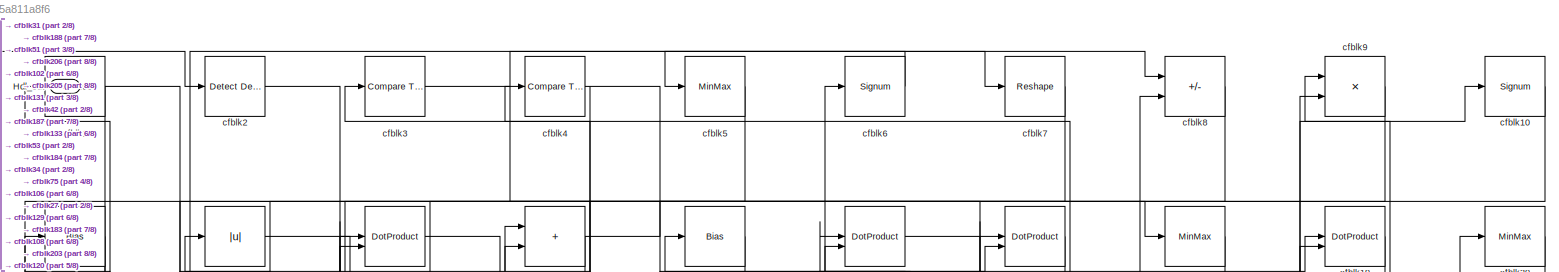
[diagram: root canvas - part 1/8, full width, top band]
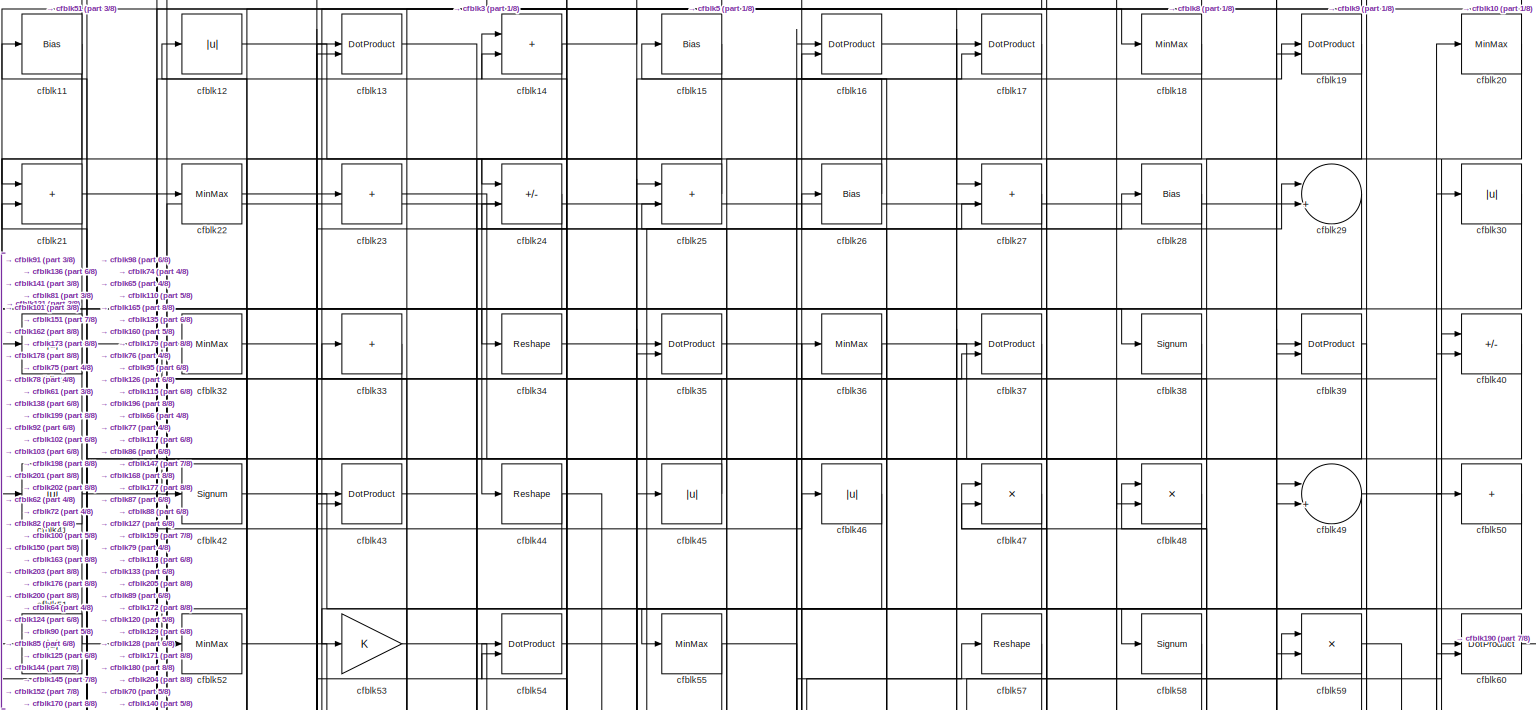
[diagram: root canvas - part 2/8, full width, top band]
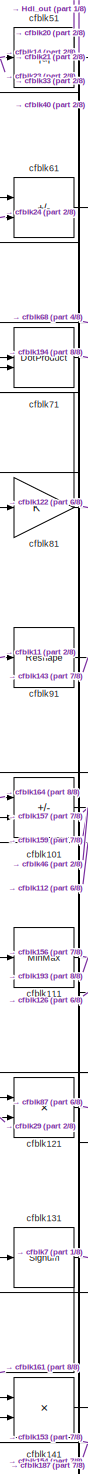
[diagram: root canvas - part 3/8, middle left region]
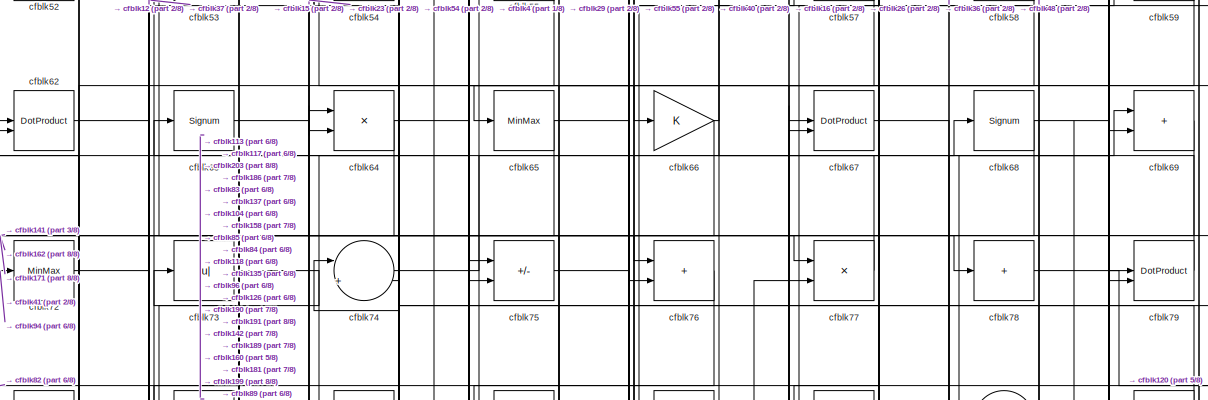
[diagram: root canvas - part 4/8, full width, middle band]
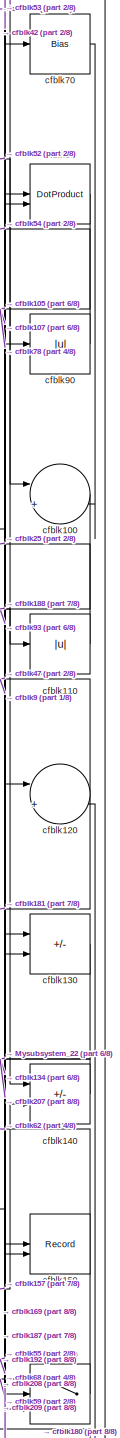
[diagram: root canvas - part 5/8, middle right region]
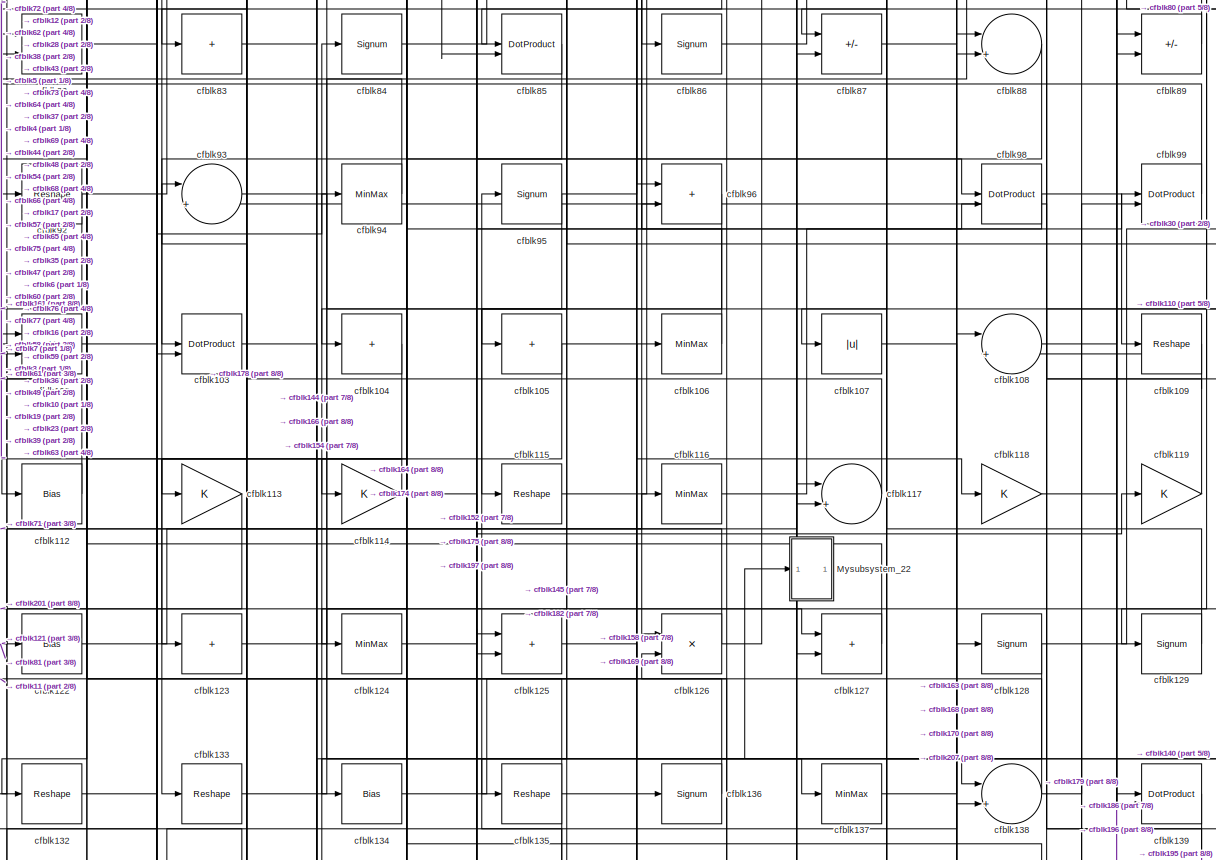
[diagram: root canvas - part 6/8, full width, middle band]
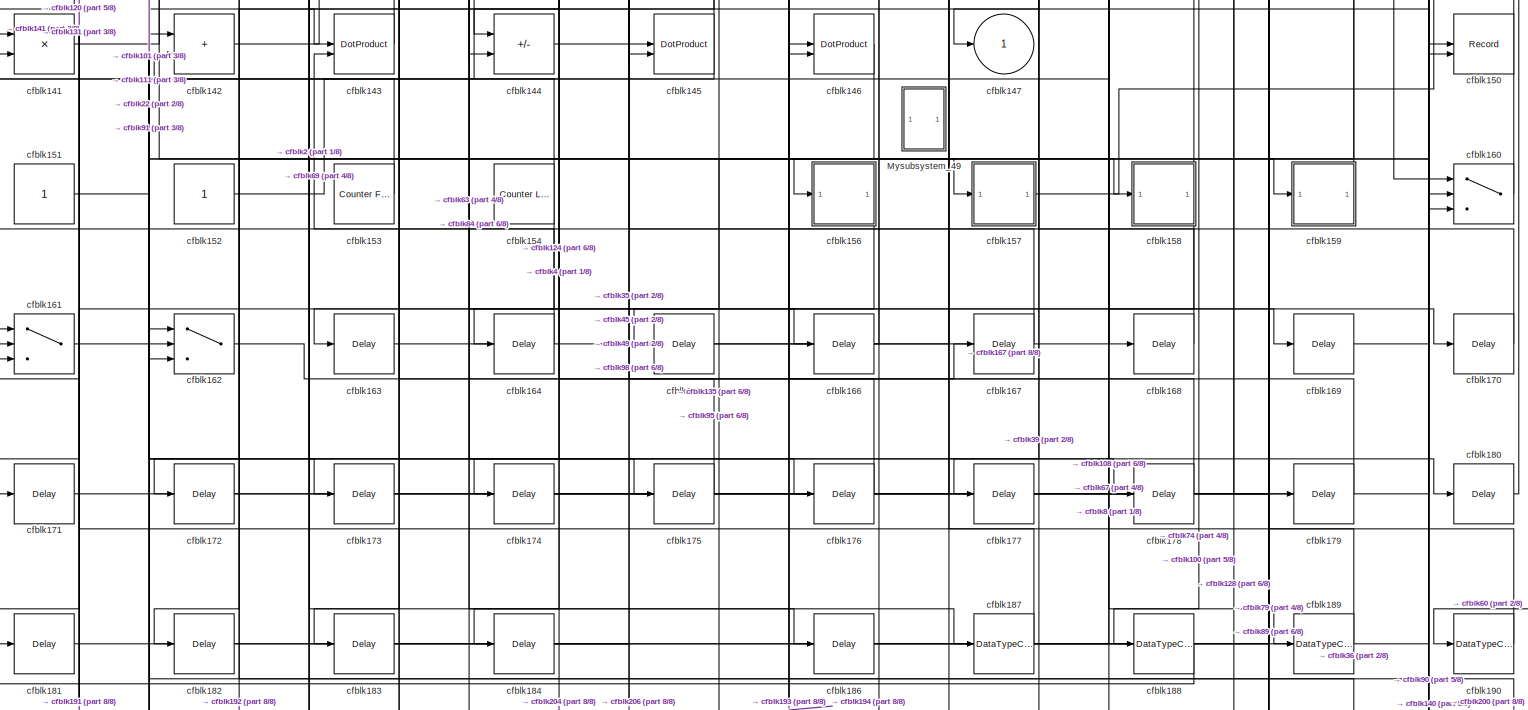
[diagram: root canvas - part 7/8, full width, bottom band]
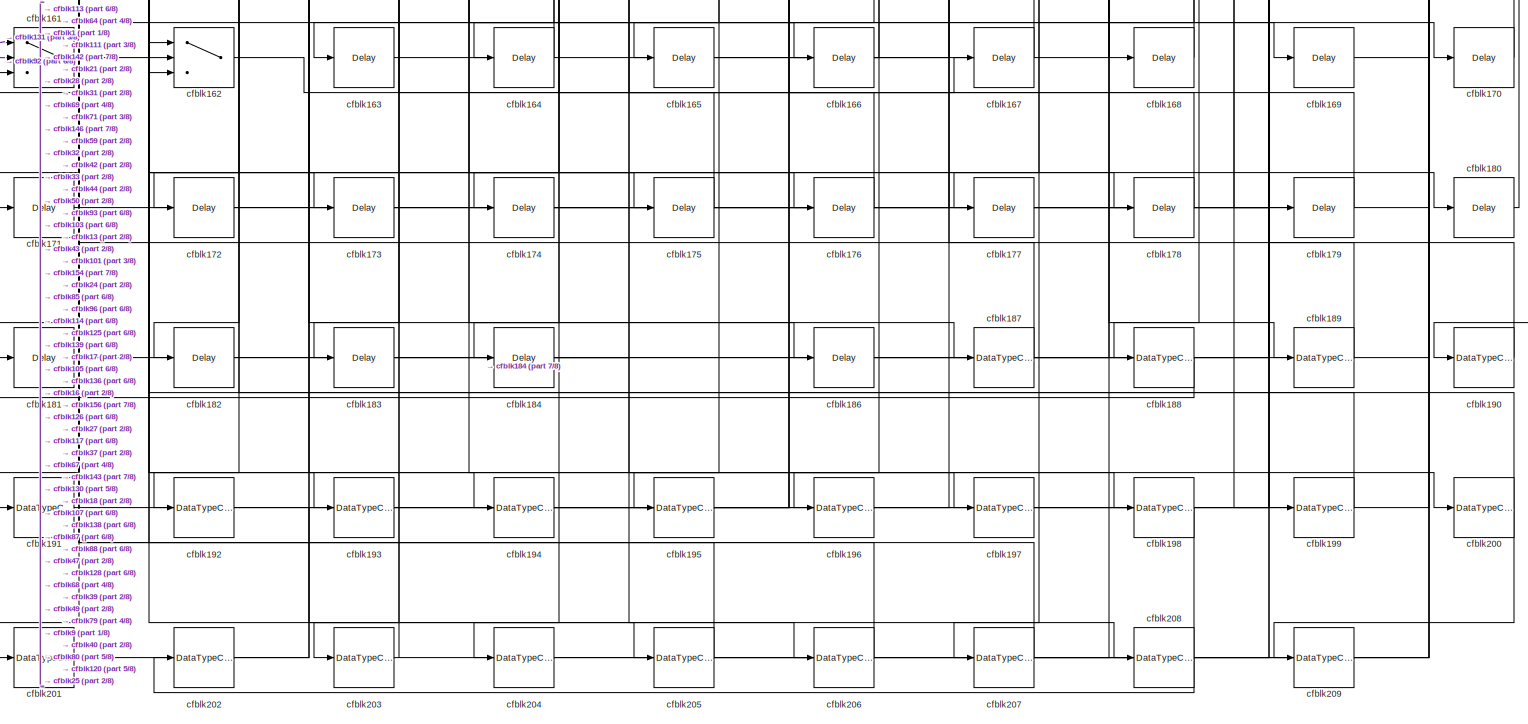
[diagram: root canvas - part 8/8, full width, bottom band]
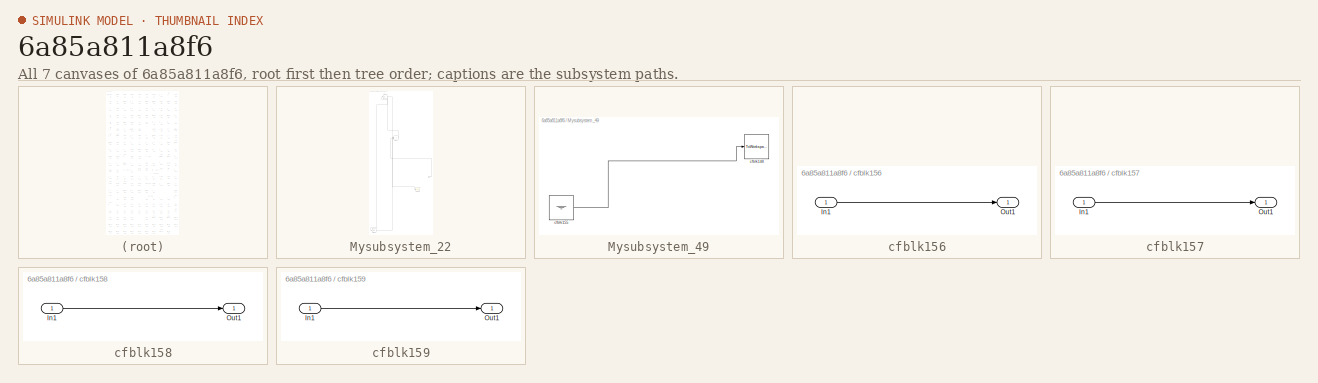
[diagram: thumbnail index - all 7 canvases of the model, root first then tree order]
MODEL slx_6a85a811a8f6
KIND model
CONFIG AbsTol = auto
CONFIG EnableMultiTasking = off
CONFIG FixedStep = auto
CONFIG MaxStep = auto
CONFIG MinStep = auto
CONFIG RelTol = 1e-3
CONFIG SampleTimeConstraint = Unconstrained
CONFIG SolverName = VariableStepAuto
CONFIG StartTime = 0.0
CONFIG StopTime = 10.0
BLOCK [Outport] Hdl_out
  OutDataTypeStr = uint8
  Port = 2
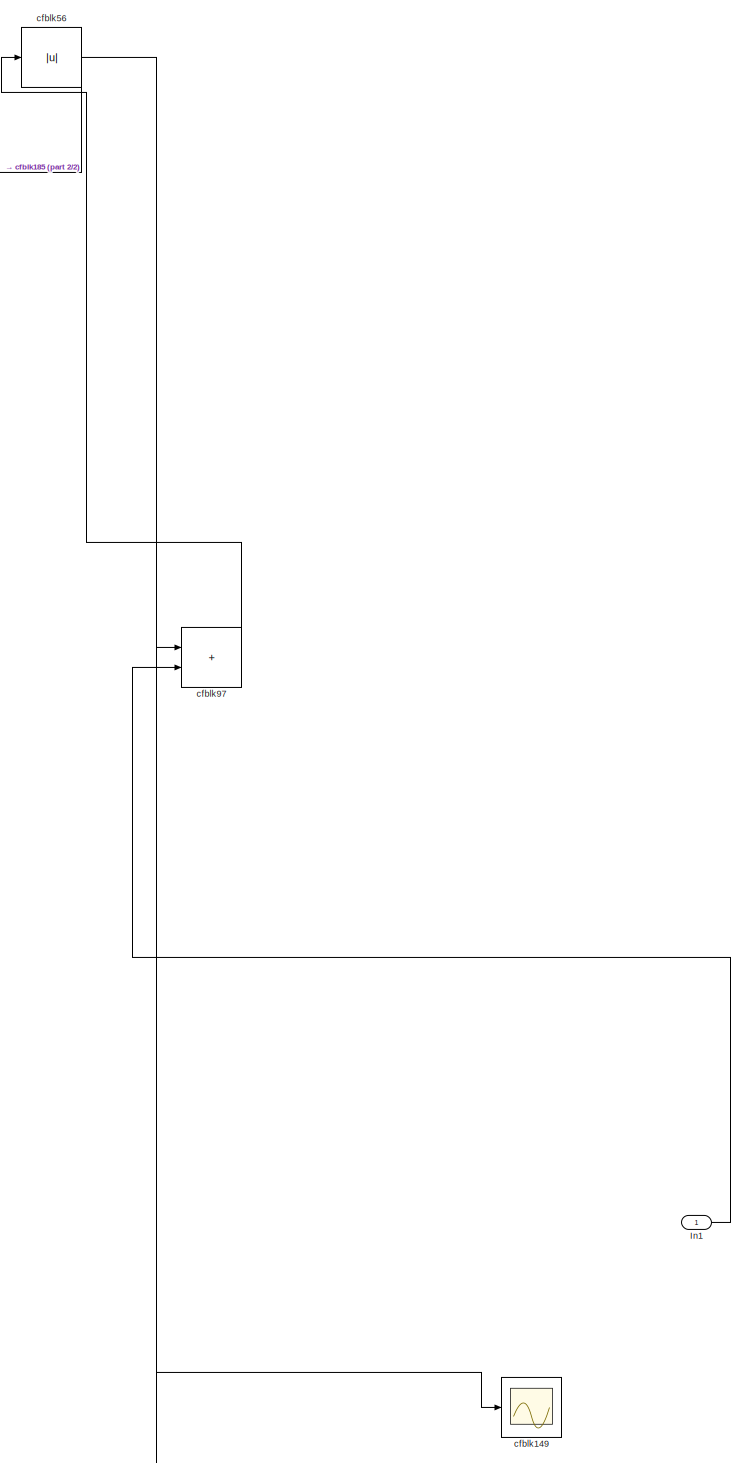
[diagram: Mysubsystem_22 - part 1/2, full width, middle band]
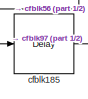
[diagram: Mysubsystem_22 - part 2/2, bottom left region]
BLOCK [SubSystem] Mysubsystem_22
  RTWFcnName = Mysubsystem_22
  RTWFcnNameOpts = User specified
  RTWFileNameOpts = Use function name
  RTWSystemCode = Reusable function
  TreatAsAtomicUnit = on
BLOCK [Inport] Mysubsystem_22/In1
BLOCK [Scope] Mysubsystem_22/cfblk149
  Floating = off
  NumInputPorts = 1
  ScopeSpecificationString = Simulink.scopes.TimeScopeBlockCfg('CurrentConfiguration', extmgr.ConfigurationSet(extmgr.Configuration('Core','General UI',true),extmgr.Configuration('Core','Source UI',true),extmgr.Configuration('Sources','WiredSimulink',true,'DataLoggingVariableName','ScopeData2','DataLoggingSaveFormat','Array','DataLoggingLimitDataPoints',true,'DataLoggingDecimation','1'),extmgr.Configuration('Visuals','Time Do...<+868ch>
BLOCK [Delay] Mysubsystem_22/cfblk185
  InputPortMap = u0
  SampleTime = 1
BLOCK [Abs] Mysubsystem_22/cfblk56
  SaturateOnIntegerOverflow = off
BLOCK [Sum] Mysubsystem_22/cfblk97
  IconShape = rectangular
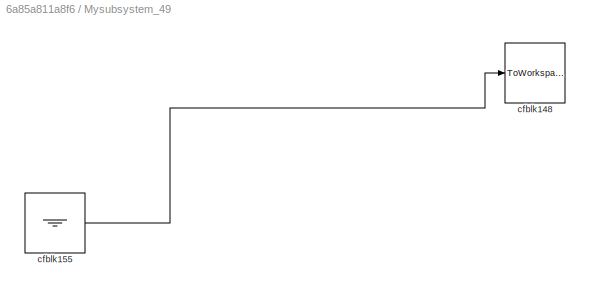
BLOCK [SubSystem] Mysubsystem_49
  RTWFcnName = Mysubsystem_49
  RTWFcnNameOpts = User specified
  RTWFileNameOpts = Use function name
  RTWSystemCode = Reusable function
  TreatAsAtomicUnit = on
BLOCK [ToWorkspace] Mysubsystem_49/cfblk148
  MaxDataPoints = inf
  SampleTime = -1
  SaveFormat = Timeseries
  VariableName = simout
BLOCK [Ground] Mysubsystem_49/cfblk155
BLOCK [Reference] cfblk1  REF=hdlsllib/Logic and Bit
Operations/Bit Slice
  SourceBlock = hdlsllib/Logic and Bit\nOperations/Bit Slice
  SourceType = Bit Slice
BLOCK [Signum] cfblk10
BLOCK [Sum] cfblk100
  Inputs = |++
  OutDataTypeStr = uint8
BLOCK [Sum] cfblk101
  IconShape = rectangular
  Inputs = +-
  OutDataTypeStr = uint8
BLOCK [Product] cfblk102
  Inputs = */
  OutDataTypeStr = uint8
  RndMeth = Zero
  SaturateOnIntegerOverflow = on
BLOCK [DotProduct] cfblk103
  OutDataTypeStr = uint8
BLOCK [Sum] cfblk104
  IconShape = rectangular
  Inputs = +
  OutDataTypeStr = uint8
BLOCK [Sum] cfblk105
  IconShape = rectangular
  Inputs = +
  OutDataTypeStr = uint8
BLOCK [MinMax] cfblk106
  OutDataTypeStr = uint8
BLOCK [Abs] cfblk107
  OutDataTypeStr = uint8
  SaturateOnIntegerOverflow = off
BLOCK [Sum] cfblk108
  Inputs = |++
  OutDataTypeStr = uint8
BLOCK [Reshape] cfblk109
BLOCK [Bias] cfblk11
  Bias = 0.0
  SaturateOnIntegerOverflow = off
BLOCK [Abs] cfblk110
  OutDataTypeStr = uint8
  SaturateOnIntegerOverflow = off
BLOCK [MinMax] cfblk111
  OutDataTypeStr = uint8
BLOCK [Bias] cfblk112
  Bias = 0.0
  SaturateOnIntegerOverflow = off
BLOCK [Gain] cfblk113
  OutDataTypeStr = uint8
BLOCK [Gain] cfblk114
  OutDataTypeStr = uint8
BLOCK [Reshape] cfblk115
BLOCK [MinMax] cfblk116
  OutDataTypeStr = uint8
BLOCK [Sum] cfblk117
  Inputs = |++
  OutDataTypeStr = uint8
BLOCK [Gain] cfblk118
  OutDataTypeStr = uint8
BLOCK [Gain] cfblk119
  OutDataTypeStr = uint8
BLOCK [Abs] cfblk12
  OutDataTypeStr = uint8
  SaturateOnIntegerOverflow = off
BLOCK [Sum] cfblk120
  Inputs = |++
  OutDataTypeStr = uint8
BLOCK [Product] cfblk121
  Inputs = */
  OutDataTypeStr = uint8
  RndMeth = Zero
  SaturateOnIntegerOverflow = on
BLOCK [Bias] cfblk122
  Bias = 0.0
  SaturateOnIntegerOverflow = off
BLOCK [Sum] cfblk123
  IconShape = rectangular
  Inputs = +
  OutDataTypeStr = uint8
BLOCK [MinMax] cfblk124
  OutDataTypeStr = uint8
BLOCK [Sum] cfblk125
  IconShape = rectangular
  OutDataTypeStr = uint8
BLOCK [Product] cfblk126
  Inputs = */
  OutDataTypeStr = uint8
  RndMeth = Zero
  SaturateOnIntegerOverflow = on
BLOCK [Sum] cfblk127
  IconShape = rectangular
  OutDataTypeStr = uint8
BLOCK [Signum] cfblk128
BLOCK [Signum] cfblk129
BLOCK [DotProduct] cfblk13
  OutDataTypeStr = uint8
BLOCK [Sum] cfblk130
  IconShape = rectangular
  Inputs = +-
  OutDataTypeStr = uint8
BLOCK [Signum] cfblk131
BLOCK [Reshape] cfblk132
BLOCK [Reshape] cfblk133
BLOCK [Bias] cfblk134
  Bias = 0.0
  SaturateOnIntegerOverflow = off
BLOCK [Reshape] cfblk135
BLOCK [Signum] cfblk136
BLOCK [MinMax] cfblk137
  OutDataTypeStr = uint8
BLOCK [Sum] cfblk138
  Inputs = |++
  OutDataTypeStr = uint8
BLOCK [DotProduct] cfblk139
  OutDataTypeStr = uint8
BLOCK [Sum] cfblk14
  IconShape = rectangular
  OutDataTypeStr = uint8
BLOCK [Sum] cfblk140
  IconShape = rectangular
  Inputs = +-
  OutDataTypeStr = uint8
BLOCK [Product] cfblk141
  Inputs = */
  OutDataTypeStr = uint8
  RndMeth = Zero
  SaturateOnIntegerOverflow = on
BLOCK [Sum] cfblk142
  IconShape = rectangular
  OutDataTypeStr = uint8
BLOCK [DotProduct] cfblk143
  OutDataTypeStr = uint8
BLOCK [Sum] cfblk144
  IconShape = rectangular
  Inputs = +-
  OutDataTypeStr = uint8
BLOCK [DotProduct] cfblk145
  OutDataTypeStr = uint8
BLOCK [DotProduct] cfblk146
  OutDataTypeStr = uint8
BLOCK [Outport] cfblk147
  OutDataTypeStr = uint8
  VectorParamsAs1DForOutWhenUnconnected = off
BLOCK [Bias] cfblk15
  Bias = 0.0
  SaturateOnIntegerOverflow = off
BLOCK [Record] cfblk150
  CompatibilityTag = XY
  FileSettingsInternal = {"entries":[{"content":{"excelSettings":{"content":{},"type":"Streamout.ExcelSettings"}},"type":"Streamout.FileSettingStorage","uuid":""}],"packageUris":["http:\/\/schema.mathworks.com\/mf0\/streamout_blocks\/R2020a"],"version":"1.0"}
  Layout = [1 1]
  SignalsInternal = {"entries":[{"content":{"signals":[{"content":{"blockPath":[],"dimensions":[1],"domain":"","lineColor":"#a2142f","plots":[1],"port":1,"signalID":10478,"signalName":"cfblk53"},"type":"RecordBlkView.Signal","uuid":""},{"content":{"blockPath":[],"dimensions":[1],"domain":"","lineColor":"#139fff","plots":[1],"port":2,"signalID":10481,"signalName":"cfblk52"},"type":"RecordBlkView.Signal","uuid":""}]},"...<+142ch>
  VisualizationBindings = {"xyplotplugin":{"info":[{"series":[{"bindingParametersList":[{"parameter":"X-Axis","signalID":10478,"signalName":"cfblk53"},{"parameter":"Y-Axis","signalID":10481,"signalName":"cfblk52"}],"seriesID":7258}],"subplotID":1}]}}
  st = -1
BLOCK [Constant] cfblk151
  OutDataTypeStr = uint8
  SampleTime = -1
BLOCK [Constant] cfblk152
  OutDataTypeStr = uint8
  SampleTime = -1
BLOCK [Reference] cfblk153  REF=hdlsllib/Sources/Counter
Free-Running
  SourceBlock = hdlsllib/Sources/Counter\nFree-Running
  SourceType = Counter Free-Running
BLOCK [Reference] cfblk154  REF=hdlsllib/Sources/Counter
Limited
  SourceBlock = hdlsllib/Sources/Counter\nLimited
  SourceType = Counter Limited
BLOCK [SubSystem] cfblk156
  LibrarySourceBlock = hdlsllib/Ports &\nSubsystems/Subsystem
BLOCK [Inport] cfblk156/In1
BLOCK [Outport] cfblk156/Out1
BLOCK [SubSystem] cfblk157
  LibrarySourceBlock = hdlsllib/Ports &\nSubsystems/Subsystem
BLOCK [Inport] cfblk157/In1
BLOCK [Outport] cfblk157/Out1
BLOCK [SubSystem] cfblk158
  LibrarySourceBlock = hdlsllib/Ports &\nSubsystems/Subsystem
BLOCK [Inport] cfblk158/In1
BLOCK [Outport] cfblk158/Out1
BLOCK [SubSystem] cfblk159
  LibrarySourceBlock = hdlsllib/Ports &\nSubsystems/Subsystem
BLOCK [Inport] cfblk159/In1
BLOCK [Outport] cfblk159/Out1
BLOCK [DotProduct] cfblk16
  OutDataTypeStr = uint8
BLOCK [Switch] cfblk160
  InputSameDT = off
  OutDataTypeStr = uint8
  SaturateOnIntegerOverflow = off
BLOCK [Switch] cfblk161
  InputSameDT = off
  OutDataTypeStr = uint8
  SaturateOnIntegerOverflow = off
BLOCK [Switch] cfblk162
  InputSameDT = off
  OutDataTypeStr = uint8
  SaturateOnIntegerOverflow = off
BLOCK [Delay] cfblk163
  InputPortMap = u0
  SampleTime = 1
BLOCK [Delay] cfblk164
  InputPortMap = u0
  SampleTime = 1
BLOCK [Delay] cfblk165
  InputPortMap = u0
  SampleTime = 1
BLOCK [Delay] cfblk166
  InputPortMap = u0
  SampleTime = 1
BLOCK [Delay] cfblk167
  InputPortMap = u0
  SampleTime = 1
BLOCK [Delay] cfblk168
  InputPortMap = u0
  SampleTime = 1
BLOCK [Delay] cfblk169
  InputPortMap = u0
  SampleTime = 1
BLOCK [DotProduct] cfblk17
  OutDataTypeStr = uint8
BLOCK [Delay] cfblk170
  InputPortMap = u0
  SampleTime = 1
BLOCK [Delay] cfblk171
  InputPortMap = u0
  SampleTime = 1
BLOCK [Delay] cfblk172
  InputPortMap = u0
  SampleTime = 1
BLOCK [Delay] cfblk173
  InputPortMap = u0
  SampleTime = 1
BLOCK [Delay] cfblk174
  InputPortMap = u0
  SampleTime = 1
BLOCK [Delay] cfblk175
  InputPortMap = u0
  SampleTime = 1
BLOCK [Delay] cfblk176
  InputPortMap = u0
  SampleTime = 1
BLOCK [Delay] cfblk177
  InputPortMap = u0
  SampleTime = 1
BLOCK [Delay] cfblk178
  InputPortMap = u0
  SampleTime = 1
BLOCK [Delay] cfblk179
  InputPortMap = u0
  SampleTime = 1
BLOCK [MinMax] cfblk18
  OutDataTypeStr = uint8
BLOCK [Delay] cfblk180
  InputPortMap = u0
  SampleTime = 1
BLOCK [Delay] cfblk181
  InputPortMap = u0
  SampleTime = 1
BLOCK [Delay] cfblk182
  InputPortMap = u0
  SampleTime = 1
BLOCK [Delay] cfblk183
  InputPortMap = u0
  SampleTime = 1
BLOCK [Delay] cfblk184
  InputPortMap = u0
  SampleTime = 1
BLOCK [Delay] cfblk186
  InputPortMap = u0
  SampleTime = 1
BLOCK [DataTypeConversion] cfblk187
  OutDataTypeStr = uint8
  RndMeth = Floor
  SaturateOnIntegerOverflow = off
BLOCK [DataTypeConversion] cfblk188
  OutDataTypeStr = uint8
  RndMeth = Floor
  SaturateOnIntegerOverflow = off
BLOCK [DataTypeConversion] cfblk189
  OutDataTypeStr = uint8
  RndMeth = Floor
  SaturateOnIntegerOverflow = off
BLOCK [DotProduct] cfblk19
  OutDataTypeStr = uint8
BLOCK [DataTypeConversion] cfblk190
  OutDataTypeStr = uint8
  RndMeth = Floor
  SaturateOnIntegerOverflow = off
BLOCK [DataTypeConversion] cfblk191
  OutDataTypeStr = uint8
  RndMeth = Floor
  SaturateOnIntegerOverflow = off
BLOCK [DataTypeConversion] cfblk192
  OutDataTypeStr = uint8
  RndMeth = Floor
  SaturateOnIntegerOverflow = off
BLOCK [DataTypeConversion] cfblk193
  OutDataTypeStr = uint8
  RndMeth = Floor
  SaturateOnIntegerOverflow = off
BLOCK [DataTypeConversion] cfblk194
  OutDataTypeStr = uint8
  RndMeth = Floor
  SaturateOnIntegerOverflow = off
BLOCK [DataTypeConversion] cfblk195
  OutDataTypeStr = uint8
  RndMeth = Floor
  SaturateOnIntegerOverflow = off
BLOCK [DataTypeConversion] cfblk196
  OutDataTypeStr = uint8
  RndMeth = Floor
  SaturateOnIntegerOverflow = off
BLOCK [DataTypeConversion] cfblk197
  OutDataTypeStr = uint8
  RndMeth = Floor
  SaturateOnIntegerOverflow = off
BLOCK [DataTypeConversion] cfblk198
  OutDataTypeStr = uint8
  RndMeth = Floor
  SaturateOnIntegerOverflow = off
BLOCK [DataTypeConversion] cfblk199
  OutDataTypeStr = uint8
  RndMeth = Floor
  SaturateOnIntegerOverflow = off
BLOCK [Reference] cfblk2  REF=simulink/Logic and Bit
Operations/Detect
Decrease
  LibrarySourceBlock = hdlsllib/Logic and Bit\nOperations/Detect\nDecrease
  SourceBlock = simulink/Logic and Bit\nOperations/Detect\nDecrease
  SourceType = Detect Decrease
BLOCK [MinMax] cfblk20
  OutDataTypeStr = uint8
BLOCK [DataTypeConversion] cfblk200
  OutDataTypeStr = uint8
  RndMeth = Floor
  SaturateOnIntegerOverflow = off
BLOCK [DataTypeConversion] cfblk201
  OutDataTypeStr = uint8
  RndMeth = Floor
  SaturateOnIntegerOverflow = off
BLOCK [DataTypeConversion] cfblk202
  OutDataTypeStr = uint8
  RndMeth = Floor
  SaturateOnIntegerOverflow = off
BLOCK [DataTypeConversion] cfblk203
  OutDataTypeStr = uint8
  RndMeth = Floor
  SaturateOnIntegerOverflow = off
BLOCK [DataTypeConversion] cfblk204
  OutDataTypeStr = uint8
  RndMeth = Floor
  SaturateOnIntegerOverflow = off
BLOCK [DataTypeConversion] cfblk205
  OutDataTypeStr = uint8
  RndMeth = Floor
  SaturateOnIntegerOverflow = off
BLOCK [DataTypeConversion] cfblk206
  OutDataTypeStr = uint8
  RndMeth = Floor
  SaturateOnIntegerOverflow = off
BLOCK [DataTypeConversion] cfblk207
  OutDataTypeStr = uint8
  RndMeth = Floor
  SaturateOnIntegerOverflow = off
BLOCK [DataTypeConversion] cfblk208
  OutDataTypeStr = uint8
  RndMeth = Floor
  SaturateOnIntegerOverflow = off
BLOCK [DataTypeConversion] cfblk209
  OutDataTypeStr = uint8
  RndMeth = Floor
  SaturateOnIntegerOverflow = off
BLOCK [Sum] cfblk21
  IconShape = rectangular
  OutDataTypeStr = uint8
BLOCK [MinMax] cfblk22
  OutDataTypeStr = uint8
BLOCK [Sum] cfblk23
  IconShape = rectangular
  Inputs = +
  OutDataTypeStr = uint8
BLOCK [Sum] cfblk24
  IconShape = rectangular
  Inputs = +-
  OutDataTypeStr = uint8
BLOCK [Sum] cfblk25
  IconShape = rectangular
  OutDataTypeStr = uint8
BLOCK [Bias] cfblk26
  Bias = 0.0
  SaturateOnIntegerOverflow = off
BLOCK [Sum] cfblk27
  IconShape = rectangular
  OutDataTypeStr = uint8
BLOCK [Bias] cfblk28
  Bias = 0.0
  SaturateOnIntegerOverflow = off
BLOCK [Sum] cfblk29
  Inputs = |++
  OutDataTypeStr = uint8
BLOCK [Reference] cfblk3  REF=hdlsllib/Logic and Bit
Operations/Compare
To Zero
  SourceBlock = hdlsllib/Logic and Bit\nOperations/Compare\nTo Zero
  SourceType = Compare To Zero
BLOCK [Abs] cfblk30
  OutDataTypeStr = uint8
  SaturateOnIntegerOverflow = off
BLOCK [Abs] cfblk31
  OutDataTypeStr = uint8
  SaturateOnIntegerOverflow = off
BLOCK [MinMax] cfblk32
  OutDataTypeStr = uint8
BLOCK [Sum] cfblk33
  IconShape = rectangular
  Inputs = +
  OutDataTypeStr = uint8
BLOCK [Reshape] cfblk34
BLOCK [DotProduct] cfblk35
  OutDataTypeStr = uint8
BLOCK [MinMax] cfblk36
  OutDataTypeStr = uint8
BLOCK [DotProduct] cfblk37
  OutDataTypeStr = uint8
BLOCK [Signum] cfblk38
BLOCK [DotProduct] cfblk39
  OutDataTypeStr = uint8
BLOCK [Reference] cfblk4  REF=hdlsllib/Logic and Bit
Operations/Compare
To Constant
  SourceBlock = hdlsllib/Logic and Bit\nOperations/Compare\nTo Constant
  SourceType = Compare To Constant
BLOCK [Sum] cfblk40
  IconShape = rectangular
  Inputs = +-
  OutDataTypeStr = uint8
BLOCK [Abs] cfblk41
  OutDataTypeStr = uint8
  SaturateOnIntegerOverflow = off
BLOCK [Signum] cfblk42
BLOCK [DotProduct] cfblk43
  OutDataTypeStr = uint8
BLOCK [Reshape] cfblk44
BLOCK [Abs] cfblk45
  OutDataTypeStr = uint8
  SaturateOnIntegerOverflow = off
BLOCK [Abs] cfblk46
  OutDataTypeStr = uint8
  SaturateOnIntegerOverflow = off
BLOCK [Product] cfblk47
  Inputs = */
  OutDataTypeStr = uint8
  RndMeth = Zero
  SaturateOnIntegerOverflow = on
BLOCK [Product] cfblk48
  Inputs = */
  OutDataTypeStr = uint8
  RndMeth = Zero
  SaturateOnIntegerOverflow = on
BLOCK [Sum] cfblk49
  Inputs = |++
  OutDataTypeStr = uint8
BLOCK [MinMax] cfblk5
  OutDataTypeStr = uint8
BLOCK [Sum] cfblk50
  IconShape = rectangular
  Inputs = +
  OutDataTypeStr = uint8
BLOCK [Abs] cfblk51
  OutDataTypeStr = uint8
  SaturateOnIntegerOverflow = off
BLOCK [MinMax] cfblk52
  OutDataTypeStr = uint8
BLOCK [Gain] cfblk53
  OutDataTypeStr = uint8
BLOCK [DotProduct] cfblk54
  OutDataTypeStr = uint8
BLOCK [MinMax] cfblk55
  OutDataTypeStr = uint8
BLOCK [Reshape] cfblk57
BLOCK [Signum] cfblk58
BLOCK [Product] cfblk59
  Inputs = */
  OutDataTypeStr = uint8
  RndMeth = Zero
  SaturateOnIntegerOverflow = on
BLOCK [Signum] cfblk6
BLOCK [DotProduct] cfblk60
  OutDataTypeStr = uint8
BLOCK [Sum] cfblk61
  IconShape = rectangular
  Inputs = +-
  OutDataTypeStr = uint8
BLOCK [DotProduct] cfblk62
  OutDataTypeStr = uint8
BLOCK [Signum] cfblk63
BLOCK [Product] cfblk64
  Inputs = */
  OutDataTypeStr = uint8
  RndMeth = Zero
  SaturateOnIntegerOverflow = on
BLOCK [MinMax] cfblk65
  OutDataTypeStr = uint8
BLOCK [Gain] cfblk66
  OutDataTypeStr = uint8
BLOCK [DotProduct] cfblk67
  OutDataTypeStr = uint8
BLOCK [Signum] cfblk68
BLOCK [Sum] cfblk69
  IconShape = rectangular
  OutDataTypeStr = uint8
BLOCK [Reshape] cfblk7
BLOCK [Bias] cfblk70
  Bias = 0.0
  SaturateOnIntegerOverflow = off
BLOCK [DotProduct] cfblk71
  OutDataTypeStr = uint8
BLOCK [MinMax] cfblk72
  OutDataTypeStr = uint8
BLOCK [Abs] cfblk73
  OutDataTypeStr = uint8
  SaturateOnIntegerOverflow = off
BLOCK [Sum] cfblk74
  Inputs = |++
  OutDataTypeStr = uint8
BLOCK [Sum] cfblk75
  IconShape = rectangular
  Inputs = +-
  OutDataTypeStr = uint8
BLOCK [Sum] cfblk76
  IconShape = rectangular
  OutDataTypeStr = uint8
BLOCK [Product] cfblk77
  Inputs = */
  OutDataTypeStr = uint8
  RndMeth = Zero
  SaturateOnIntegerOverflow = on
BLOCK [Sum] cfblk78
  IconShape = rectangular
  Inputs = +
  OutDataTypeStr = uint8
BLOCK [DotProduct] cfblk79
  OutDataTypeStr = uint8
BLOCK [Sum] cfblk8
  IconShape = rectangular
  Inputs = +-
  OutDataTypeStr = uint8
BLOCK [DotProduct] cfblk80
  OutDataTypeStr = uint8
BLOCK [Gain] cfblk81
  OutDataTypeStr = uint8
BLOCK [Sum] cfblk82
  IconShape = rectangular
  OutDataTypeStr = uint8
BLOCK [Sum] cfblk83
  IconShape = rectangular
  Inputs = +
  OutDataTypeStr = uint8
BLOCK [Signum] cfblk84
BLOCK [DotProduct] cfblk85
  OutDataTypeStr = uint8
BLOCK [Signum] cfblk86
BLOCK [Sum] cfblk87
  IconShape = rectangular
  Inputs = +-
  OutDataTypeStr = uint8
BLOCK [Sum] cfblk88
  Inputs = |++
  OutDataTypeStr = uint8
BLOCK [Sum] cfblk89
  IconShape = rectangular
  Inputs = +-
  OutDataTypeStr = uint8
BLOCK [Product] cfblk9
  Inputs = */
  OutDataTypeStr = uint8
  RndMeth = Zero
  SaturateOnIntegerOverflow = on
BLOCK [Abs] cfblk90
  OutDataTypeStr = uint8
  SaturateOnIntegerOverflow = off
BLOCK [Reshape] cfblk91
BLOCK [Reshape] cfblk92
BLOCK [Sum] cfblk93
  Inputs = |++
  OutDataTypeStr = uint8
BLOCK [MinMax] cfblk94
  OutDataTypeStr = uint8
BLOCK [Signum] cfblk95
BLOCK [Sum] cfblk96
  IconShape = rectangular
  OutDataTypeStr = uint8
BLOCK [DotProduct] cfblk98
  OutDataTypeStr = uint8
BLOCK [DotProduct] cfblk99
  OutDataTypeStr = uint8
LINE Mysubsystem_22/In1:1 -> Mysubsystem_22/cfblk97:2
LINE Mysubsystem_22/cfblk185:1 -> Mysubsystem_22/cfblk97:1
NET Mysubsystem_22/cfblk56:1 -> Mysubsystem_22/cfblk149:1, Mysubsystem_22/cfblk185:1
LINE Mysubsystem_22/cfblk97:1 -> Mysubsystem_22/cfblk56:1
LINE Mysubsystem_49/cfblk155:1 -> Mysubsystem_49/cfblk148:1
LINE cfblk100:1 -> cfblk188:1
NET cfblk101:1 -> cfblk157:1, cfblk159:1, cfblk46:1
LINE cfblk102:1 -> cfblk28:1
LINE cfblk103:1 -> cfblk166:1
LINE cfblk104:1 -> cfblk132:1
NET cfblk105:1 -> cfblk123:1, cfblk169:1
NET cfblk106:1 -> cfblk4:1, cfblk6:1
LINE cfblk107:1 -> cfblk170:1
LINE cfblk108:1 -> cfblk10:1
LINE cfblk109:1 -> cfblk108:2
LINE cfblk10:1 -> cfblk31:1
LINE cfblk110:1 -> cfblk25:2
NET cfblk111:1 -> cfblk156:1, cfblk193:1
LINE cfblk112:1 -> cfblk61:1
LINE cfblk113:1 -> cfblk201:1
NET cfblk114:1 -> cfblk112:1, cfblk197:1
LINE cfblk115:1 -> cfblk60:1
LINE cfblk116:1 -> cfblk99:1
LINE cfblk117:1 -> cfblk73:1
LINE cfblk118:1 -> cfblk19:2
LINE cfblk119:1 -> cfblk93:2
LINE cfblk11:1 -> cfblk91:1
NET cfblk120:1 -> cfblk181:1, cfblk47:1, cfblk9:1
LINE cfblk121:1 -> cfblk87:2
LINE cfblk122:1 -> cfblk116:1
LINE cfblk123:1 -> cfblk127:1
NET cfblk124:1 -> cfblk119:1, cfblk144:1
LINE cfblk125:1 -> cfblk138:1
NET cfblk126:1 -> cfblk71:2, cfblk77:2
LINE cfblk127:1 -> cfblk102:1
NET cfblk128:1 -> cfblk144:2, cfblk179:1, cfblk30:1
LINE cfblk129:1 -> cfblk3:1
NET cfblk12:1 -> cfblk44:1, cfblk76:1
LINE cfblk130:1 -> cfblk207:1
NET cfblk131:1 -> cfblk161:1, cfblk7:1
LINE cfblk132:1 -> cfblk94:1
LINE cfblk133:1 -> cfblk49:1
LINE cfblk134:1 -> cfblk106:1
NET cfblk135:1 -> cfblk158:1, cfblk17:2, cfblk182:1, cfblk62:1
LINE cfblk136:1 -> cfblk11:1
LINE cfblk137:1 -> cfblk128:1
NET cfblk138:1 -> cfblk12:1, cfblk99:2
LINE cfblk139:1 -> cfblk195:1
LINE cfblk13:1 -> cfblk200:1
NET cfblk140:1 -> Mysubsystem_22:1, cfblk134:1
NET cfblk141:1 -> cfblk14:2, cfblk23:1, cfblk51:1
LINE cfblk142:1 -> cfblk69:1
LINE cfblk143:1 -> cfblk101:2
NET cfblk144:1 -> cfblk45:1, cfblk98:2
NET cfblk145:1 -> cfblk142:2, cfblk95:1
LINE cfblk146:1 -> cfblk192:1
NET cfblk14:1 -> cfblk18:1, cfblk21:1, cfblk43:2
LINE cfblk151:1 -> cfblk22:1
NET cfblk152:1 -> cfblk108:1, cfblk35:2
LINE cfblk153:1 -> cfblk111:1
NET cfblk154:1 -> cfblk141:1, cfblk191:1, cfblk84:1
LINE cfblk156/In1:1 -> cfblk156/Out1:1
LINE cfblk156:1 -> cfblk204:1
LINE cfblk157/In1:1 -> cfblk157/Out1:1
LINE cfblk157:1 -> cfblk140:2
LINE cfblk158/In1:1 -> cfblk158/Out1:1
NET cfblk158:1 -> cfblk183:1, cfblk74:1
LINE cfblk159/In1:1 -> cfblk159/Out1:1
LINE cfblk159:1 -> cfblk36:1
LINE cfblk15:1 -> cfblk64:2
LINE cfblk160:1 -> cfblk62:2
LINE cfblk161:1 -> cfblk175:1
LINE cfblk162:1 -> cfblk167:1
LINE cfblk163:1 -> cfblk138:2
LINE cfblk164:1 -> cfblk101:1
LINE cfblk165:1 -> cfblk37:1
LINE cfblk166:1 -> cfblk126:2
LINE cfblk167:1 -> cfblk143:2
LINE cfblk168:1 -> cfblk47:2
LINE cfblk169:1 -> cfblk80:2
LINE cfblk16:1 -> cfblk117:2
LINE cfblk170:1 -> cfblk25:1
LINE cfblk171:1 -> cfblk40:2
LINE cfblk172:1 -> cfblk49:2
LINE cfblk173:1 -> cfblk59:2
LINE cfblk174:1 -> cfblk117:1
LINE cfblk175:1 -> cfblk125:1
LINE cfblk176:1 -> cfblk24:2
LINE cfblk177:1 -> cfblk39:2
LINE cfblk178:1 -> cfblk93:1
LINE cfblk179:1 -> cfblk16:1
LINE cfblk17:1 -> cfblk165:1
LINE cfblk180:1 -> cfblk120:2
LINE cfblk181:1 -> cfblk69:2
LINE cfblk182:1 -> cfblk145:1
LINE cfblk183:1 -> cfblk8:2
LINE cfblk184:1 -> cfblk206:1
LINE cfblk186:1 -> cfblk89:1
NET cfblk187:1 -> cfblk131:1, cfblk90:1
LINE cfblk188:1 -> cfblk2:1
LINE cfblk189:1 -> cfblk79:1
LINE cfblk18:1 -> cfblk177:1
LINE cfblk190:1 -> cfblk67:1
LINE cfblk191:1 -> cfblk67:2
NET cfblk192:1 -> cfblk208:1, cfblk80:1
LINE cfblk193:1 -> cfblk146:1
LINE cfblk194:1 -> cfblk146:2
LINE cfblk195:1 -> cfblk136:1
LINE cfblk196:1 -> cfblk139:1
LINE cfblk197:1 -> cfblk139:2
LINE cfblk198:1 -> cfblk202:1
LINE cfblk199:1 -> cfblk32:1
LINE cfblk19:1 -> cfblk58:1
LINE cfblk1:1 -> cfblk205:1
NET cfblk200:1 -> cfblk142:1, cfblk209:1
LINE cfblk201:1 -> cfblk13:1
LINE cfblk202:1 -> cfblk13:2
NET cfblk203:1 -> cfblk33:1, cfblk79:2, cfblk9:2
LINE cfblk204:1 -> cfblk50:1
NET cfblk205:1 -> cfblk161:3, cfblk39:1
LINE cfblk206:1 -> cfblk1:1
NET cfblk207:1 -> cfblk162:1, cfblk88:2
LINE cfblk208:1 -> cfblk130:1
LINE cfblk209:1 -> cfblk130:2
NET cfblk20:1 -> cfblk140:1, cfblk52:1
LINE cfblk21:1 -> cfblk178:1
NET cfblk22:1 -> cfblk38:1, cfblk48:2
NET cfblk23:1 -> cfblk77:1, cfblk89:2
LINE cfblk24:1 -> cfblk61:2
LINE cfblk25:1 -> cfblk24:1
LINE cfblk26:1 -> cfblk15:1
LINE cfblk27:1 -> cfblk196:1
NET cfblk28:1 -> cfblk162:2, cfblk87:1
NET cfblk29:1 -> cfblk121:2, cfblk41:1
LINE cfblk2:1 -> cfblk187:1
LINE cfblk30:1 -> cfblk92:1
LINE cfblk31:1 -> cfblk173:1
LINE cfblk32:1 -> cfblk198:1
LINE cfblk33:1 -> cfblk121:1
LINE cfblk34:1 -> cfblk19:1
LINE cfblk35:1 -> cfblk86:1
NET cfblk36:1 -> cfblk74:2, cfblk88:1
LINE cfblk37:1 -> cfblk124:1
LINE cfblk38:1 -> cfblk103:2
NET cfblk39:1 -> cfblk129:1, cfblk147:1
NET cfblk3:1 -> cfblk27:1, cfblk8:1
NET cfblk40:1 -> cfblk60:2, cfblk76:2, cfblk81:1
NET cfblk41:1 -> cfblk17:1, cfblk75:2, cfblk78:1
NET cfblk42:1 -> cfblk180:1, cfblk70:1
LINE cfblk43:1 -> cfblk176:1
NET cfblk44:1 -> cfblk163:1, cfblk85:2
LINE cfblk45:1 -> cfblk14:1
LINE cfblk46:1 -> cfblk55:1
LINE cfblk47:1 -> cfblk126:1
LINE cfblk48:1 -> cfblk125:2
NET cfblk49:1 -> cfblk145:2, cfblk40:1
NET cfblk4:1 -> cfblk184:1, cfblk75:1
LINE cfblk50:1 -> cfblk203:1
NET cfblk51:1 -> Hdl_out:1, cfblk20:1
NET cfblk52:1 -> cfblk100:1, cfblk150:2
NET cfblk53:1 -> cfblk150:1, cfblk27:2
LINE cfblk54:1 -> cfblk98:1
NET cfblk55:1 -> cfblk160:2, cfblk65:1
LINE cfblk57:1 -> cfblk135:1
LINE cfblk58:1 -> cfblk127:2
NET cfblk59:1 -> cfblk160:1, cfblk172:1
NET cfblk5:1 -> cfblk133:1, cfblk34:1
LINE cfblk60:1 -> cfblk190:1
LINE cfblk61:1 -> cfblk29:2
LINE cfblk62:1 -> cfblk54:2
LINE cfblk63:1 -> cfblk186:1
NET cfblk64:1 -> cfblk171:1, cfblk66:1
NET cfblk65:1 -> cfblk118:1, cfblk83:1
NET cfblk66:1 -> cfblk16:2, cfblk85:1
LINE cfblk67:1 -> cfblk189:1
NET cfblk68:1 -> cfblk141:2, cfblk160:3, cfblk199:1
NET cfblk69:1 -> cfblk104:1, cfblk162:3
LINE cfblk6:1 -> cfblk5:1
LINE cfblk70:1 -> cfblk100:2
LINE cfblk71:1 -> cfblk194:1
LINE cfblk72:1 -> cfblk37:2
LINE cfblk73:1 -> cfblk137:1
LINE cfblk74:1 -> cfblk29:1
LINE cfblk75:1 -> cfblk96:1
NET cfblk76:1 -> cfblk113:1, cfblk82:2
LINE cfblk77:1 -> cfblk26:1
LINE cfblk78:1 -> cfblk120:1
LINE cfblk79:1 -> cfblk48:1
LINE cfblk7:1 -> cfblk102:2
NET cfblk80:1 -> cfblk105:1, cfblk107:1
NET cfblk81:1 -> cfblk122:1, cfblk21:2, cfblk71:1
LINE cfblk82:1 -> cfblk43:1
LINE cfblk83:1 -> cfblk64:1
NET cfblk84:1 -> cfblk114:1, cfblk68:1
LINE cfblk85:1 -> cfblk164:1
LINE cfblk86:1 -> cfblk59:1
LINE cfblk87:1 -> cfblk168:1
LINE cfblk88:1 -> cfblk103:1
LINE cfblk89:1 -> cfblk63:1
LINE cfblk8:1 -> cfblk53:1
LINE cfblk90:1 -> cfblk54:1
LINE cfblk91:1 -> cfblk143:1
NET cfblk92:1 -> cfblk161:2, cfblk35:1
LINE cfblk93:1 -> cfblk110:1
LINE cfblk94:1 -> cfblk72:1
NET cfblk95:1 -> cfblk115:1, cfblk57:1
LINE cfblk96:1 -> cfblk174:1
NET cfblk98:1 -> cfblk109:1, cfblk96:2
LINE cfblk99:1 -> cfblk82:1
LINE cfblk9:1 -> cfblk42:1
note: NET lines group one-source signal fan-out (src -> all destinations, sorted); 1:1 wires keep LINE
